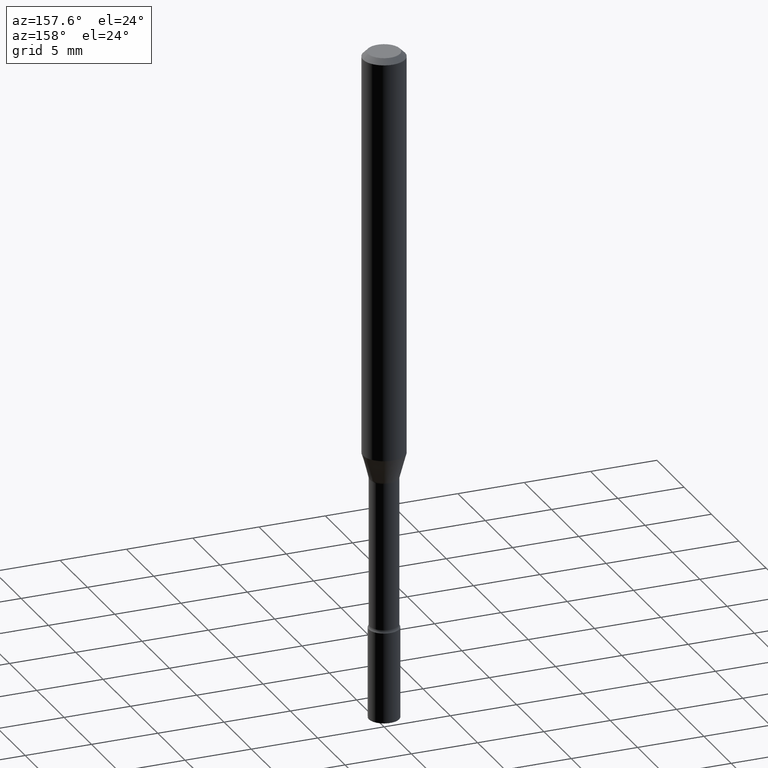
[diagram: clean part render]
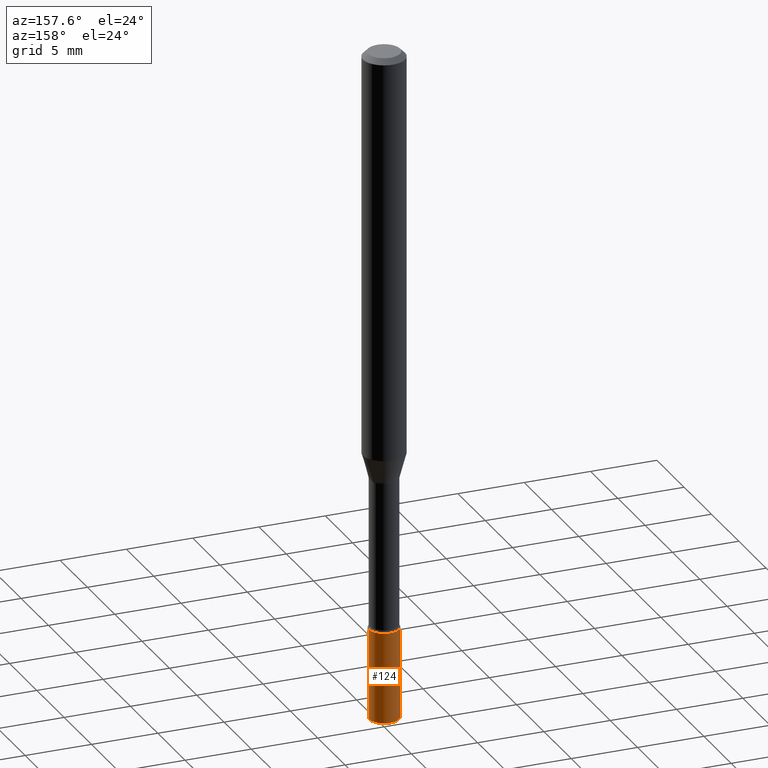
[diagram: same view with one face highlighted and labeled with its STEP entity id]
A machine part, auxiliary view. The second image highlights one B-rep face of the part: STEP entity #124.
In plain terms, the highlighted cylindrical surface (edge-blend (fillet) strip) has radius 1.143 mm, axis along (-0, 0, 1).
Its self-contained STEP definition (entity closure, byte-faithful):
#4 = DIRECTION ( 'NONE',  ( -2.445468806185136597E-29, 3.491481338843145583E-15, 1.000000000000000000 ) ) ;
#10 = ORIENTED_EDGE ( 'NONE', *, *, #42, .T. ) ;
#31 = CARTESIAN_POINT ( 'NONE',  ( 0.04499999999999999833, -6.354496036694523059E-15, -1.729999999999999760 ) ) ;
#42 = EDGE_CURVE ( 'NONE', #225, #414, #420, .T. ) ;
#58 = EDGE_LOOP ( 'NONE', ( #354, #10, #442, #252 ) ) ;
#76 = CARTESIAN_POINT ( 'NONE',  ( -0.04499999999999999833, -6.191868465850420113E-15, -2.000000000000000000 ) ) ;
#99 = VERTEX_POINT ( 'NONE', #506 ) ;
#124 = ADVANCED_FACE ( 'NONE', ( #474 ), #468, .T. ) ;
#157 = VECTOR ( 'NONE', #239, 39.37007874015748143 ) ;
#158 = VERTEX_POINT ( 'NONE', #31 ) ;
#159 = DIRECTION ( 'NONE',  ( 1.000000000000000000, -6.982962677686269077E-15, 0.000000000000000000 ) ) ;
#162 = CARTESIAN_POINT ( 'NONE',  ( -0.04499999999999999833, -6.191868465850420113E-15, -1.729999999999999760 ) ) ;
#163 = CIRCLE ( 'NONE', #246, 0.04499999999999999833 ) ;
#197 = AXIS2_PLACEMENT_3D ( 'NONE', #501, #427, #382 ) ;
#225 = VERTEX_POINT ( 'NONE', #76 ) ;
#233 = CARTESIAN_POINT ( 'NONE',  ( 4.230661034700285954E-29, -6.040262716198641373E-15, -1.729999999999999760 ) ) ;
#239 = DIRECTION ( 'NONE',  ( -2.445468806185136877E-29, 3.491481338843145188E-15, 1.000000000000000000 ) ) ;
#243 = EDGE_CURVE ( 'NONE', #99, #158, #485, .T. ) ;
#246 = AXIS2_PLACEMENT_3D ( 'NONE', #233, #4, #159 ) ;
#252 = ORIENTED_EDGE ( 'NONE', *, *, #243, .F. ) ;
#288 = AXIS2_PLACEMENT_3D ( 'NONE', #331, #328, #496 ) ;
#299 = DIRECTION ( 'NONE',  ( -2.445468806185136877E-29, 3.491481338843145188E-15, 1.000000000000000000 ) ) ;
#324 = EDGE_CURVE ( 'NONE', #158, #414, #163, .T. ) ;
#328 = DIRECTION ( 'NONE',  ( -2.445468806185136597E-29, 3.491481338843145583E-15, 1.000000000000000000 ) ) ;
#331 = CARTESIAN_POINT ( 'NONE',  ( 4.890937612370273194E-29, -6.982962677686291165E-15, -2.000000000000000000 ) ) ;
#349 = CARTESIAN_POINT ( 'NONE',  ( -0.04499999999999999833, 3.197442310920450718E-16, -2.213520790614707560E-30 ) ) ;
#354 = ORIENTED_EDGE ( 'NONE', *, *, #491, .T. ) ;
#382 = DIRECTION ( 'NONE',  ( 1.000000000000000000, -6.982962677686266711E-15, 4.876176775795935793E-29 ) ) ;
#386 = CIRCLE ( 'NONE', #288, 0.04499999999999999833 ) ;
#400 = VECTOR ( 'NONE', #299, 39.37007874015748143 ) ;
#414 = VERTEX_POINT ( 'NONE', #162 ) ;
#420 = LINE ( 'NONE', #349, #400 ) ;
#427 = DIRECTION ( 'NONE',  ( -2.445468806185136597E-29, 3.491481338843145583E-15, 1.000000000000000000 ) ) ;
#433 = CARTESIAN_POINT ( 'NONE',  ( 0.04499999999999999833, -3.142333204958819823E-16, 2.194279549108170967E-30 ) ) ;
#442 = ORIENTED_EDGE ( 'NONE', *, *, #324, .F. ) ;
#468 = CYLINDRICAL_SURFACE ( 'NONE', #197, 0.04499999999999999833 ) ;
#474 = FACE_OUTER_BOUND ( 'NONE', #58, .T. ) ;
#485 = LINE ( 'NONE', #433, #157 ) ;
#491 = EDGE_CURVE ( 'NONE', #99, #225, #386, .T. ) ;
#496 = DIRECTION ( 'NONE',  ( 1.000000000000000000, -6.982962677686269077E-15, 0.000000000000000000 ) ) ;
#501 = CARTESIAN_POINT ( 'NONE',  ( 0.000000000000000000, 0.000000000000000000, 0.000000000000000000 ) ) ;
#506 = CARTESIAN_POINT ( 'NONE',  ( 0.04499999999999999833, -7.297195998182173641E-15, -2.000000000000000000 ) ) ;